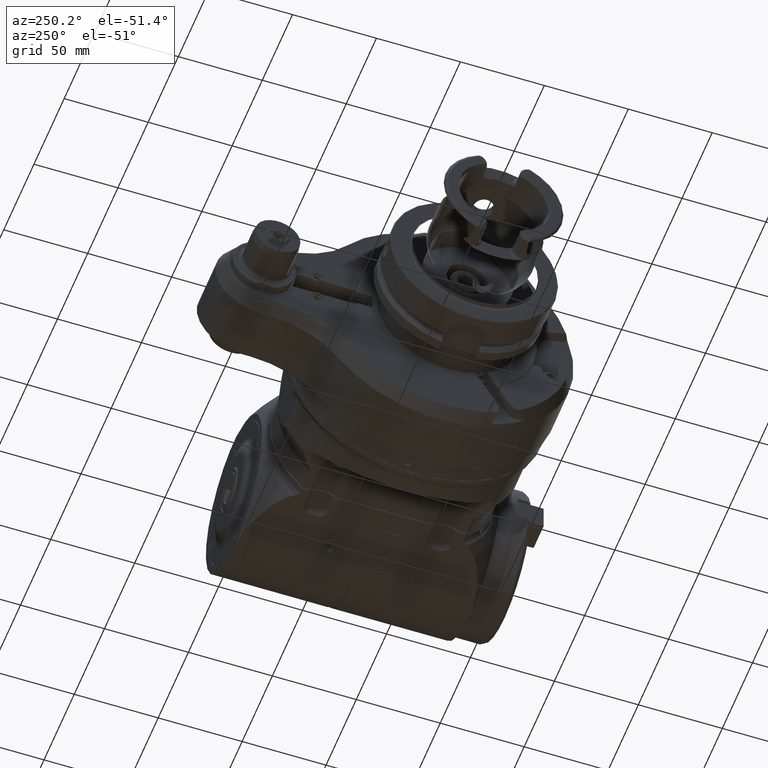
[diagram: clean part render]
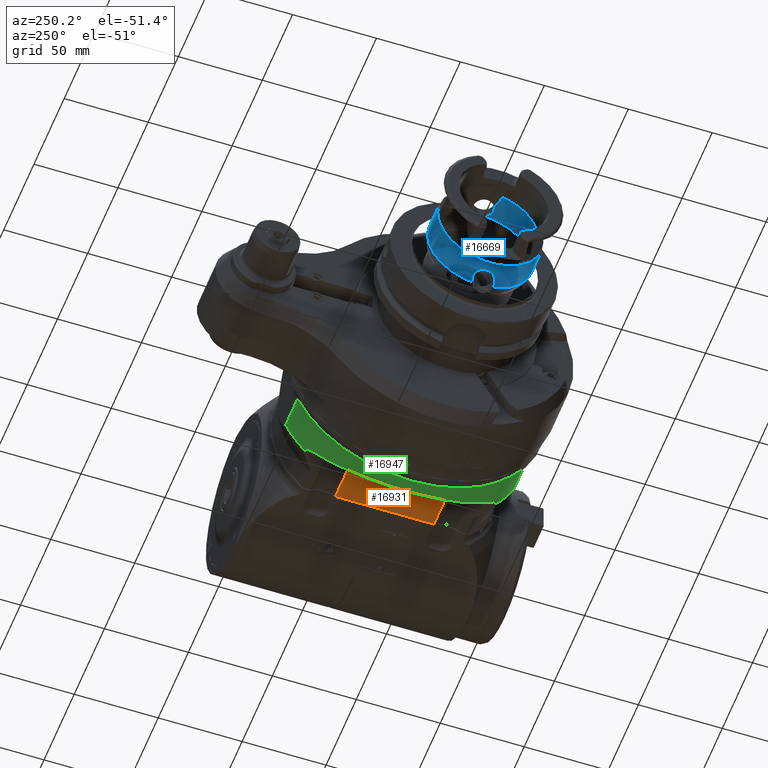
[diagram: same view with three faces highlighted in distinct colors, each labeled with its STEP entity id]
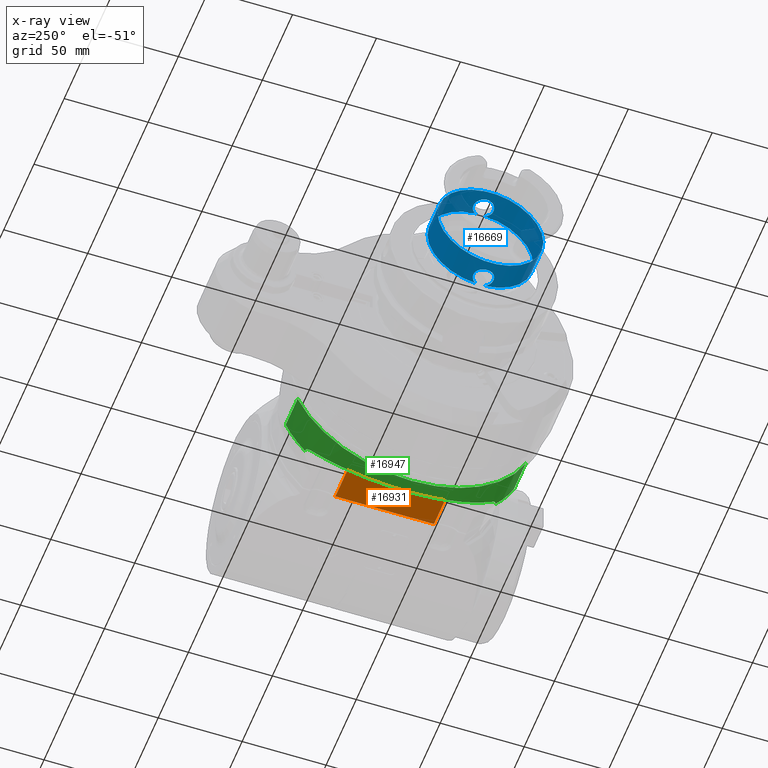
[diagram: x-ray of the same camera — body ghosted, the three highlighted faces saturated]
A machine part, auxiliary view with three faces highlighted in distinct colors.
The next image is the same camera in x-ray (body ghosted, the three faces saturated) — at least one of them is partly hidden behind the body in this view.
Their STEP definitions:

[orange] entity #16931 — the highlighted planar face has unit normal (0, -0, 1).
#1149=PLANE('',#18555);
#1912=FACE_OUTER_BOUND('',#2915,.T.);
#2915=EDGE_LOOP('',(#14111,#14112,#14113,#14114,#14115,#14116));
#4039=LINE('',#41698,#5346);
#4041=LINE('',#41705,#5348);
#4042=LINE('',#41709,#5349);
#4043=LINE('',#41710,#5350);
#5346=VECTOR('',#22198,22.5);
#5348=VECTOR('',#22204,59.46724184201);
#5349=VECTOR('',#22207,22.5);
#5350=VECTOR('',#22208,58.6939759534);
#6529=CIRCLE('',#18556,5.361902647382);
#6530=CIRCLE('',#18557,5.361902647382);
#7784=VERTEX_POINT('',#41691);
#7785=VERTEX_POINT('',#41697);
#7787=VERTEX_POINT('',#41703);
#7788=VERTEX_POINT('',#41704);
#7789=VERTEX_POINT('',#41706);
#7790=VERTEX_POINT('',#41708);
#10062=EDGE_CURVE('',#7785,#7784,#4039,.T.);
#10065=EDGE_CURVE('',#7787,#7788,#4041,.T.);
#10066=EDGE_CURVE('',#7789,#7787,#6529,.T.);
#10067=EDGE_CURVE('',#7790,#7789,#4042,.T.);
#10068=EDGE_CURVE('',#7790,#7784,#4043,.T.);
#10069=EDGE_CURVE('',#7785,#7788,#6530,.T.);
#14111=ORIENTED_EDGE('',*,*,#10065,.F.);
#14112=ORIENTED_EDGE('',*,*,#10066,.F.);
#14113=ORIENTED_EDGE('',*,*,#10067,.F.);
#14114=ORIENTED_EDGE('',*,*,#10068,.T.);
#14115=ORIENTED_EDGE('',*,*,#10062,.F.);
#14116=ORIENTED_EDGE('',*,*,#10069,.T.);
#16931=ADVANCED_FACE('',(#1912),#1149,.F.);
#18555=AXIS2_PLACEMENT_3D('',#41702,#22202,#22203);
#18556=AXIS2_PLACEMENT_3D('',#41707,#22205,#22206);
#18557=AXIS2_PLACEMENT_3D('',#41711,#22209,#22210);
#22198=DIRECTION('',(0.999999999999998,5.78819700712699E-8,-2.38164713235E-8));
#22202=DIRECTION('center_axis',(0.,0.,1.));
#22203=DIRECTION('ref_axis',(-1.,0.,0.));
#22204=DIRECTION('',(0.,-1.,0.));
#22205=DIRECTION('center_axis',(0.,0.,-1.));
#22206=DIRECTION('ref_axis',(0.,-1.,0.));
#22207=DIRECTION('',(-0.999999999999998,5.78843137570099E-8,2.381743513524E-8));
#22208=DIRECTION('',(0.,-1.,3.698348974468E-13));
#22209=DIRECTION('center_axis',(0.,0.,1.));
#22210=DIRECTION('ref_axis',(1.457685938624E-13,1.,0.));
#41691=CARTESIAN_POINT('',(40.4999999726847,-29.346988710895,-47.5000004198599));
#41697=CARTESIAN_POINT('',(18.,-29.34698927909,-47.5));
#41698=CARTESIAN_POINT('',(18.,-29.34698927909,-47.5));
#41702=CARTESIAN_POINT('Origin',(39.5,-92.4000024,-47.5));
#41703=CARTESIAN_POINT('',(16.00083056686,29.73362092099,-47.5));
#41704=CARTESIAN_POINT('',(16.00083056686,-29.73362092102,-47.5));
#41705=CARTESIAN_POINT('',(16.00083056686,29.73362092099,-47.5));
#41706=CARTESIAN_POINT('',(18.,29.34698927905,-47.5));
#41707=CARTESIAN_POINT('Origin',(18.,34.70889192643,-47.5));
#41708=CARTESIAN_POINT('',(40.4999999726819,29.3469887108875,-47.5000004198505));
#41709=CARTESIAN_POINT('',(40.5,29.34698797665,-47.50000053589));
#41710=CARTESIAN_POINT('',(40.5,29.34698797665,-47.50000053589));
#41711=CARTESIAN_POINT('Origin',(18.,-34.70889192647,-47.5));

[blue] entity #16669 — the highlighted cylindrical surface (bore or boss wall) has radius 31.5 mm, axis along (1, -0, -0).
#794=B_SPLINE_CURVE_WITH_KNOTS('',3,(#39626,#39627,#39628,#39629,#39630,
#39631,#39632,#39633,#39634,#39635,#39636,#39637,#39638,#39639,#39640,#39641,
#39642,#39643,#39644,#39645,#39646,#39647,#39648,#39649),.UNSPECIFIED.,
 .F.,.F.,(4,2,2,2,2,2,2,2,2,2,2,4),(1.1960723605861,1.35964031027847,1.58625396842777,
1.81286762657707,2.03948128472637,2.26609494287567,2.49269819137064,2.7193014398656,
2.94590468836057,3.17250793685554,3.39912159500484,3.62573525315414),
 .UNSPECIFIED.);
#795=B_SPLINE_CURVE_WITH_KNOTS('',3,(#39651,#39652,#39653,#39654,#39655,
#39656,#39657,#39658),.UNSPECIFIED.,.F.,.F.,(4,2,2,4),(3.62573525315414,
3.85234891130344,4.07896256945274,4.24253051914432),.UNSPECIFIED.);
#796=B_SPLINE_CURVE_WITH_KNOTS('',3,(#39664,#39665,#39666,#39667,#39668,
#39669,#39670,#39671),.UNSPECIFIED.,.F.,.F.,(4,2,2,4),(3.00893998716406,
3.17250793685554,3.39912159500484,3.62573525315414),.UNSPECIFIED.);
#797=B_SPLINE_CURVE_WITH_KNOTS('',3,(#39673,#39674,#39675,#39676,#39677,
#39678,#39679,#39680,#39681,#39682,#39683,#39684,#39685,#39686,#39687,#39688,
#39689,#39690,#39691,#39692,#39693,#39694,#39695,#39696),.UNSPECIFIED.,
 .F.,.F.,(4,2,2,2,2,2,2,2,2,2,2,4),(3.62573525315414,3.85234891130344,4.07896256945274,
4.30556581794771,4.53216906644267,4.75877231493764,4.98537556343261,5.21198922158191,
5.43860287973121,5.66521653788051,5.89183019602981,6.05539814571795),
 .UNSPECIFIED.);
#1650=FACE_OUTER_BOUND('',#2626,.T.);
#2626=EDGE_LOOP('',(#12813,#12814,#12815,#12816,#12817,#12818,#12819,#12820,
#12821,#12822,#12823,#12824));
#3784=LINE('',#39622,#5091);
#5091=VECTOR('',#20963,31.5);
#6305=CIRCLE('',#18060,31.5);
#6306=CIRCLE('',#18061,31.5);
#6308=CIRCLE('',#18064,31.5);
#6309=CIRCLE('',#18065,31.5);
#6310=CIRCLE('',#18066,31.5);
#6311=CIRCLE('',#18067,31.5);
#7363=VERTEX_POINT('',#39615);
#7364=VERTEX_POINT('',#39616);
#7365=VERTEX_POINT('',#39621);
#7366=VERTEX_POINT('',#39623);
#7367=VERTEX_POINT('',#39625);
#7368=VERTEX_POINT('',#39650);
#7369=VERTEX_POINT('',#39659);
#7370=VERTEX_POINT('',#39661);
#7371=VERTEX_POINT('',#39663);
#7372=VERTEX_POINT('',#39672);
#9409=EDGE_CURVE('',#7363,#7364,#6305,.T.);
#9410=EDGE_CURVE('',#7364,#7363,#6306,.T.);
#9412=EDGE_CURVE('',#7364,#7365,#3784,.T.);
#9413=EDGE_CURVE('',#7366,#7365,#6308,.T.);
#9414=EDGE_CURVE('',#7367,#7366,#794,.F.);
#9415=EDGE_CURVE('',#7368,#7367,#795,.F.);
#9416=EDGE_CURVE('',#7369,#7368,#6309,.T.);
#9417=EDGE_CURVE('',#7370,#7369,#6310,.T.);
#9418=EDGE_CURVE('',#7371,#7370,#796,.F.);
#9419=EDGE_CURVE('',#7372,#7371,#797,.F.);
#9420=EDGE_CURVE('',#7365,#7372,#6311,.T.);
#12813=ORIENTED_EDGE('',*,*,#9409,.F.);
#12814=ORIENTED_EDGE('',*,*,#9410,.F.);
#12815=ORIENTED_EDGE('',*,*,#9412,.T.);
#12816=ORIENTED_EDGE('',*,*,#9413,.F.);
#12817=ORIENTED_EDGE('',*,*,#9414,.F.);
#12818=ORIENTED_EDGE('',*,*,#9415,.F.);
#12819=ORIENTED_EDGE('',*,*,#9416,.F.);
#12820=ORIENTED_EDGE('',*,*,#9417,.F.);
#12821=ORIENTED_EDGE('',*,*,#9418,.F.);
#12822=ORIENTED_EDGE('',*,*,#9419,.F.);
#12823=ORIENTED_EDGE('',*,*,#9420,.F.);
#12824=ORIENTED_EDGE('',*,*,#9412,.F.);
#16188=CYLINDRICAL_SURFACE('',#18063,31.5);
#16669=ADVANCED_FACE('',(#1650),#16188,.F.);
#18060=AXIS2_PLACEMENT_3D('',#39617,#20955,#20956);
#18061=AXIS2_PLACEMENT_3D('',#39618,#20957,#20958);
#18063=AXIS2_PLACEMENT_3D('',#39620,#20961,#20962);
#18064=AXIS2_PLACEMENT_3D('',#39624,#20964,#20965);
#18065=AXIS2_PLACEMENT_3D('',#39660,#20966,#20967);
#18066=AXIS2_PLACEMENT_3D('',#39662,#20968,#20969);
#18067=AXIS2_PLACEMENT_3D('',#39697,#20970,#20971);
#20955=DIRECTION('center_axis',(1.,-3.552713678797E-13,0.));
#20956=DIRECTION('ref_axis',(0.,0.,1.));
#20957=DIRECTION('center_axis',(1.,-3.552713678797E-13,0.));
#20958=DIRECTION('ref_axis',(0.,0.,1.));
#20961=DIRECTION('center_axis',(1.,-3.552713678797E-13,0.));
#20962=DIRECTION('ref_axis',(0.,0.,-1.));
#20963=DIRECTION('',(1.,-3.552713678797E-13,0.));
#20964=DIRECTION('center_axis',(-1.,3.552713678797E-13,0.));
#20965=DIRECTION('ref_axis',(-3.53763688911732E-13,-0.995756260976036,0.0920297165432133));
#20966=DIRECTION('center_axis',(-1.,3.552713678797E-13,0.));
#20967=DIRECTION('ref_axis',(3.53763688911752E-13,0.995756260976093,-0.0920297165425993));
#20968=DIRECTION('center_axis',(-1.,3.552713678797E-13,0.));
#20969=DIRECTION('ref_axis',(3.53763688911752E-13,0.995756260976093,-0.0920297165425993));
#20970=DIRECTION('center_axis',(-1.,3.552713678797E-13,0.));
#20971=DIRECTION('ref_axis',(-3.53763688911732E-13,-0.995756260976036,0.0920297165432133));
#39615=CARTESIAN_POINT('',(-37.53927405783,5.051935058243E-11,-31.5));
#39616=CARTESIAN_POINT('',(-37.53927405783,5.05154928176211E-11,31.5));
#39617=CARTESIAN_POINT('Origin',(-37.53927405783,5.051935045504E-11,0.));
#39618=CARTESIAN_POINT('Origin',(-37.53927405783,5.051935045504E-11,0.));
#39620=CARTESIAN_POINT('Origin',(-29.14303420132,4.753640683617E-11,0.));
#39621=CARTESIAN_POINT('',(-20.7467943447972,4.45496055798798E-11,31.5));
#39622=CARTESIAN_POINT('',(-29.14303420132,4.75325491987527E-11,31.5));
#39623=CARTESIAN_POINT('',(-20.7467943448,-31.3663222207,2.898936071072));
#39624=CARTESIAN_POINT('Origin',(-20.74679434481,4.455346321731E-11,0.));
#39625=CARTESIAN_POINT('',(-26.0000000000115,-30.923292192086,-6.));
#39626=CARTESIAN_POINT('Ctrl Pts',(-20.7467943448084,-31.3663222207046,
2.89893607106815));
#39627=CARTESIAN_POINT('Ctrl Pts',(-21.0245557801368,-31.3198029656705,
3.40227174563756));
#39628=CARTESIAN_POINT('Ctrl Pts',(-21.3735944691366,-31.2651415109957,
3.85887584336357));
#39629=CARTESIAN_POINT('Ctrl Pts',(-22.2890426608596,-31.1407087274129,
4.77432403508655));
#39630=CARTESIAN_POINT('Ctrl Pts',(-22.9624834305544,-31.0633803744313,
5.23577180141274));
#39631=CARTESIAN_POINT('Ctrl Pts',(-24.4401908644842,-30.9538382315849,
5.84865855662957));
#39632=CARTESIAN_POINT('Ctrl Pts',(-25.2446211395139,-30.9232921920863,
6.));
#39633=CARTESIAN_POINT('Ctrl Pts',(-26.7553788605092,-30.9232921920858,
6.));
#39634=CARTESIAN_POINT('Ctrl Pts',(-27.5598091355388,-30.9538382315838,
5.84865855662957));
#39635=CARTESIAN_POINT('Ctrl Pts',(-29.0375165694688,-31.0633803744291,
5.23577180141274));
#39636=CARTESIAN_POINT('Ctrl Pts',(-29.7109573391636,-31.1407087274102,
4.77432403508655));
#39637=CARTESIAN_POINT('Ctrl Pts',(-30.7742996118577,-31.2852440928064,
3.71098176239249));
#39638=CARTESIAN_POINT('Ctrl Pts',(-31.2357665182075,-31.3619556484263,
3.03753058698362));
#39639=CARTESIAN_POINT('Ctrl Pts',(-31.8486671603478,-31.4700797313194,
1.55978711209123));
#39640=CARTESIAN_POINT('Ctrl Pts',(-32.0000000000117,-31.4999999999515,
0.755344161649892));
#39641=CARTESIAN_POINT('Ctrl Pts',(-32.0000000000117,-31.4999999999515,
-0.755344161649894));
#39642=CARTESIAN_POINT('Ctrl Pts',(-31.8486671603478,-31.4700797313194,
-1.55978711209124));
#39643=CARTESIAN_POINT('Ctrl Pts',(-31.2357665182075,-31.3619556484263,
-3.03753058698362));
#39644=CARTESIAN_POINT('Ctrl Pts',(-30.7742996118577,-31.2852440928064,
-3.71098176239249));
#39645=CARTESIAN_POINT('Ctrl Pts',(-29.7109573391636,-31.1407087274102,
-4.77432403508655));
#39646=CARTESIAN_POINT('Ctrl Pts',(-29.0375165694688,-31.0633803744291,
-5.23577180141274));
#39647=CARTESIAN_POINT('Ctrl Pts',(-27.5598091355388,-30.9538382315838,
-5.84865855662957));
#39648=CARTESIAN_POINT('Ctrl Pts',(-26.7553788605092,-30.9232921920858,
-6.));
#39649=CARTESIAN_POINT('Ctrl Pts',(-26.0000000000115,-30.923292192086,-6.));
#39650=CARTESIAN_POINT('',(-20.74679434481,-31.3663222207,-2.898936071076));
#39651=CARTESIAN_POINT('Ctrl Pts',(-26.0000000000115,-30.923292192086,-6.));
#39652=CARTESIAN_POINT('Ctrl Pts',(-25.2446211395139,-30.9232921920863,
-6.));
#39653=CARTESIAN_POINT('Ctrl Pts',(-24.4401908644842,-30.9538382315849,
-5.84865855662957));
#39654=CARTESIAN_POINT('Ctrl Pts',(-22.9624834305544,-31.0633803744313,
-5.23577180141273));
#39655=CARTESIAN_POINT('Ctrl Pts',(-22.2890426608596,-31.1407087274129,
-4.77432403508655));
#39656=CARTESIAN_POINT('Ctrl Pts',(-21.3735944691385,-31.2651415109955,
-3.85887584336541));
#39657=CARTESIAN_POINT('Ctrl Pts',(-21.0245557801401,-31.31980296567,-3.40227174564196));
#39658=CARTESIAN_POINT('Ctrl Pts',(-20.7467943448124,-31.3663222207039,
-2.89893607107542));
#39659=CARTESIAN_POINT('',(-20.74679434481,4.45496055798927E-11,-31.5));
#39660=CARTESIAN_POINT('Origin',(-20.74679434481,4.455346321731E-11,0.));
#39661=CARTESIAN_POINT('',(-20.74679434479,31.36632222079,-2.898936071076));
#39662=CARTESIAN_POINT('Origin',(-20.74679434481,4.455346321731E-11,0.));
#39663=CARTESIAN_POINT('',(-25.9999999999895,30.9232921921789,-6.));
#39664=CARTESIAN_POINT('Ctrl Pts',(-20.7467943447906,31.3663222207929,-2.89893607107631));
#39665=CARTESIAN_POINT('Ctrl Pts',(-21.0245557801183,31.3198029657592,-3.4022717456425));
#39666=CARTESIAN_POINT('Ctrl Pts',(-21.3735944691165,31.265141511085,-3.85887584336564));
#39667=CARTESIAN_POINT('Ctrl Pts',(-22.2890426608374,31.1407087275031,-4.77432403508655));
#39668=CARTESIAN_POINT('Ctrl Pts',(-22.9624834305323,31.063380374522,-5.23577180141274));
#39669=CARTESIAN_POINT('Ctrl Pts',(-24.4401908644622,30.9538382316767,-5.84865855662957));
#39670=CARTESIAN_POINT('Ctrl Pts',(-25.2446211394919,30.9232921921786,-6.));
#39671=CARTESIAN_POINT('Ctrl Pts',(-25.9999999999895,30.9232921921789,-6.));
#39672=CARTESIAN_POINT('',(-20.7467943448,31.36632222079,2.898936071111));
#39673=CARTESIAN_POINT('Ctrl Pts',(-25.9999999999895,30.9232921921789,-6.));
#39674=CARTESIAN_POINT('Ctrl Pts',(-26.7553788604872,30.9232921921791,-6.));
#39675=CARTESIAN_POINT('Ctrl Pts',(-27.5598091355169,30.9538382316778,-5.84865855662957));
#39676=CARTESIAN_POINT('Ctrl Pts',(-29.0375165694467,31.0633803745241,-5.23577180141274));
#39677=CARTESIAN_POINT('Ctrl Pts',(-29.7109573391415,31.1407087275057,-4.77432403508655));
#39678=CARTESIAN_POINT('Ctrl Pts',(-30.7742996118355,31.2852440929026,-3.71098176239249));
#39679=CARTESIAN_POINT('Ctrl Pts',(-31.2357665181852,31.3619556485229,-3.03753058698362));
#39680=CARTESIAN_POINT('Ctrl Pts',(-31.8486671603255,31.4700797314164,-1.55978711209124));
#39681=CARTESIAN_POINT('Ctrl Pts',(-31.9999999999893,31.5000000000486,-0.755344161649895));
#39682=CARTESIAN_POINT('Ctrl Pts',(-31.9999999999893,31.5000000000486,0.755344161649892));
#39683=CARTESIAN_POINT('Ctrl Pts',(-31.8486671603255,31.4700797314164,1.55978711209124));
#39684=CARTESIAN_POINT('Ctrl Pts',(-31.2357665181852,31.3619556485229,3.03753058698362));
#39685=CARTESIAN_POINT('Ctrl Pts',(-30.7742996118355,31.2852440929026,3.71098176239249));
#39686=CARTESIAN_POINT('Ctrl Pts',(-29.7109573391415,31.1407087275057,4.77432403508655));
#39687=CARTESIAN_POINT('Ctrl Pts',(-29.0375165694467,31.0633803745241,5.23577180141274));
#39688=CARTESIAN_POINT('Ctrl Pts',(-27.5598091355169,30.9538382316778,5.84865855662957));
#39689=CARTESIAN_POINT('Ctrl Pts',(-26.7553788604872,30.9232921921792,6.));
#39690=CARTESIAN_POINT('Ctrl Pts',(-25.2446211394919,30.9232921921786,6.));
#39691=CARTESIAN_POINT('Ctrl Pts',(-24.4401908644622,30.9538382316767,5.84865855662957));
#39692=CARTESIAN_POINT('Ctrl Pts',(-22.9624834305323,31.063380374522,5.23577180141274));
#39693=CARTESIAN_POINT('Ctrl Pts',(-22.2890426608374,31.1407087275031,4.77432403508655));
#39694=CARTESIAN_POINT('Ctrl Pts',(-21.3735944691243,31.2651415110839,3.85887584337348));
#39695=CARTESIAN_POINT('Ctrl Pts',(-21.0245557801325,31.319802965757,3.40227174566122));
#39696=CARTESIAN_POINT('Ctrl Pts',(-20.7467943448076,31.3663222207901,2.89893607110716));
#39697=CARTESIAN_POINT('Origin',(-20.74679434481,4.455346321731E-11,0.));

[green] entity #16947 — the highlighted cylindrical surface (partial cylindrical patch) has radius 74 mm, axis along (1, -0, -0).
#39=ELLIPSE('',#18562,78.7491551632184,74.);
#844=B_SPLINE_CURVE_WITH_KNOTS('',3,(#41517,#41518,#41519,#41520,#41521,
#41522,#41523,#41524),.UNSPECIFIED.,.F.,.F.,(4,2,2,4),(-8.97473766116249,
-8.92847385363976,-8.88221004611703,-8.8541838956784),.UNSPECIFIED.);
#866=B_SPLINE_CURVE_WITH_KNOTS('',3,(#41889,#41890,#41891,#41892,#41893,
#41894,#41895,#41896,#41897,#41898),.UNSPECIFIED.,.F.,.F.,(4,2,2,2,4),(-1.3951785206262,
-1.30734777719661,-1.15922986829573,-0.950940355376749,-0.92440659430022),
 .UNSPECIFIED.);
#867=B_SPLINE_CURVE_WITH_KNOTS('',3,(#41904,#41905,#41906,#41907,#41908,
#41909),.UNSPECIFIED.,.F.,.F.,(4,2,4),(5.82399857270311,5.88327052843539,
5.94927367881169),.UNSPECIFIED.);
#868=B_SPLINE_CURVE_WITH_KNOTS('',3,(#41913,#41914,#41915,#41916,#41917,
#41918,#41919,#41920,#41921,#41922),.UNSPECIFIED.,.F.,.F.,(4,2,2,2,4),(0.92440659430022,
0.950940355376749,1.15922986829573,1.30734777719661,1.39517852399918),
 .UNSPECIFIED.);
#1928=FACE_OUTER_BOUND('',#2933,.T.);
#2933=EDGE_LOOP('',(#14198,#14199,#14200,#14201,#14202,#14203,#14204,#14205,
#14206,#14207));
#4027=LINE('',#41514,#5334);
#4063=LINE('',#41902,#5370);
#5334=VECTOR('',#22132,18.59147469257);
#5370=VECTOR('',#22282,18.59147469257);
#6536=CIRCLE('',#18584,74.);
#6537=CIRCLE('',#18585,74.);
#6538=CIRCLE('',#18586,74.);
#7757=VERTEX_POINT('',#41452);
#7762=VERTEX_POINT('',#41503);
#7763=VERTEX_POINT('',#41516);
#7797=VERTEX_POINT('',#41751);
#7798=VERTEX_POINT('',#41753);
#7824=VERTEX_POINT('',#41882);
#7825=VERTEX_POINT('',#41900);
#7826=VERTEX_POINT('',#41901);
#7827=VERTEX_POINT('',#41903);
#7828=VERTEX_POINT('',#41911);
#10023=EDGE_CURVE('',#7757,#7762,#4027,.T.);
#10024=EDGE_CURVE('',#7757,#7763,#844,.T.);
#10078=EDGE_CURVE('',#7797,#7798,#39,.T.);
#10116=EDGE_CURVE('',#7824,#7797,#866,.T.);
#10117=EDGE_CURVE('',#7825,#7826,#4063,.T.);
#10118=EDGE_CURVE('',#7827,#7826,#867,.T.);
#10119=EDGE_CURVE('',#7763,#7827,#6536,.T.);
#10120=EDGE_CURVE('',#7828,#7762,#6537,.T.);
#10121=EDGE_CURVE('',#7798,#7828,#868,.T.);
#10122=EDGE_CURVE('',#7825,#7824,#6538,.T.);
#14198=ORIENTED_EDGE('',*,*,#10117,.T.);
#14199=ORIENTED_EDGE('',*,*,#10118,.F.);
#14200=ORIENTED_EDGE('',*,*,#10119,.F.);
#14201=ORIENTED_EDGE('',*,*,#10024,.F.);
#14202=ORIENTED_EDGE('',*,*,#10023,.T.);
#14203=ORIENTED_EDGE('',*,*,#10120,.F.);
#14204=ORIENTED_EDGE('',*,*,#10121,.F.);
#14205=ORIENTED_EDGE('',*,*,#10078,.F.);
#14206=ORIENTED_EDGE('',*,*,#10116,.F.);
#14207=ORIENTED_EDGE('',*,*,#10122,.F.);
#16259=CYLINDRICAL_SURFACE('',#18583,74.);
#16947=ADVANCED_FACE('',(#1928),#16259,.T.);
#18562=AXIS2_PLACEMENT_3D('',#41754,#22221,#22222);
#18583=AXIS2_PLACEMENT_3D('',#41899,#22280,#22281);
#18584=AXIS2_PLACEMENT_3D('',#41910,#22283,#22284);
#18585=AXIS2_PLACEMENT_3D('',#41912,#22285,#22286);
#18586=AXIS2_PLACEMENT_3D('',#41923,#22287,#22288);
#22132=DIRECTION('',(1.,0.,0.));
#22221=DIRECTION('center_axis',(0.939692620785897,0.,-0.342020143325699));
#22222=DIRECTION('ref_axis',(0.342020143325699,-1.12785771207228E-16,0.939692620785897));
#22280=DIRECTION('center_axis',(1.,0.,0.));
#22281=DIRECTION('ref_axis',(0.,0.,-1.));
#22282=DIRECTION('',(-1.,0.,0.));
#22283=DIRECTION('center_axis',(-1.,0.,0.));
#22284=DIRECTION('ref_axis',(0.,0.528115842389186,-0.849172336465078));
#22285=DIRECTION('center_axis',(1.,0.,0.));
#22286=DIRECTION('ref_axis',(0.,0.766268020526802,-0.642521066361202));
#22287=DIRECTION('center_axis',(1.,0.,0.));
#22288=DIRECTION('ref_axis',(0.,-0.918918918918919,-0.394446473495308));
#41452=CARTESIAN_POINT('',(-3.199169847156,68.,-29.18903903865));
#41503=CARTESIAN_POINT('',(15.39230484541,68.,-29.18903903865));
#41514=CARTESIAN_POINT('',(-3.199169847156,68.,-29.18903903865));
#41516=CARTESIAN_POINT('',(-4.343145750507,68.16707433772,-28.79670078734));
#41517=CARTESIAN_POINT('Ctrl Pts',(-3.199169847161,68.0000000000003,-29.1890390386521));
#41518=CARTESIAN_POINT('Ctrl Pts',(-3.35338253890279,68.0000000000001,-29.1890390386526));
#41519=CARTESIAN_POINT('Ctrl Pts',(-3.50873002634391,68.0090859585314,-29.1678970355995));
#41520=CARTESIAN_POINT('Ctrl Pts',(-3.81147760353553,68.0442065780357,-29.0858718549993));
#41521=CARTESIAN_POINT('Ctrl Pts',(-3.9589027533416,68.0702020466671,-29.0250644150093));
#41522=CARTESIAN_POINT('Ctrl Pts',(-4.18296004485383,68.1218971883241,-28.903453239249));
#41523=CARTESIAN_POINT('Ctrl Pts',(-4.26472449291117,68.1436687105561,-28.852106201268));
#41524=CARTESIAN_POINT('Ctrl Pts',(-4.34314575050775,68.1670743377207,-28.7967007873413));
#41751=CARTESIAN_POINT('',(12.24206008372,-54.43152261875,-50.1319194267));
#41753=CARTESIAN_POINT('',(12.24206008372,54.43152261875,-50.1319194267));
#41754=CARTESIAN_POINT('Origin',(30.4885865416663,0.,0.));
#41882=CARTESIAN_POINT('',(15.3923048125211,-56.7038335107798,-47.5465589205125));
#41889=CARTESIAN_POINT('Ctrl Pts',(15.3923048113315,-56.7038335145847,-47.5465589159748));
#41890=CARTESIAN_POINT('Ctrl Pts',(15.0966365176392,-56.6656729212564,-47.5920690849595));
#41891=CARTESIAN_POINT('Ctrl Pts',(14.8046128873128,-56.5988263780084,-47.6717203786077));
#41892=CARTESIAN_POINT('Ctrl Pts',(14.0691232505964,-56.3530836493524,-47.962350324512));
#41893=CARTESIAN_POINT('Ctrl Pts',(13.6597016419349,-56.1261262009457,-48.2286199313907));
#41894=CARTESIAN_POINT('Ctrl Pts',(12.891424908051,-55.5320548889032,-48.9128954006325));
#41895=CARTESIAN_POINT('Ctrl Pts',(12.5439192001421,-55.0930592941075,-49.4090621932634));
#41896=CARTESIAN_POINT('Ctrl Pts',(12.2929239357564,-54.5548337505144,-49.9977823349801));
#41897=CARTESIAN_POINT('Ctrl Pts',(12.2665186874685,-54.4934139241589,-50.064719965177));
#41898=CARTESIAN_POINT('Ctrl Pts',(12.2420600837167,-54.4315226187475,-50.1319194266965));
#41899=CARTESIAN_POINT('Origin',(41.,0.,0.));
#41900=CARTESIAN_POINT('',(15.39230484541,-68.,-29.18903903865));
#41901=CARTESIAN_POINT('',(-3.199169847162,-68.,-29.18903903865));
#41902=CARTESIAN_POINT('',(15.39230484541,-68.,-29.18903903865));
#41903=CARTESIAN_POINT('',(-4.343145750508,-68.16707433772,-28.79670078734));
#41904=CARTESIAN_POINT('Ctrl Pts',(-4.3431457505092,-68.1670743377204,-28.7967007873419));
#41905=CARTESIAN_POINT('Ctrl Pts',(-4.1830012486624,-68.1192775716706,-28.9098445022585));
#41906=CARTESIAN_POINT('Ctrl Pts',(-4.01188734524031,-68.0791803320279,
-29.0039747753425));
#41907=CARTESIAN_POINT('Ctrl Pts',(-3.63105121116806,-68.018200178978,-29.146718243036));
#41908=CARTESIAN_POINT('Ctrl Pts',(-3.41918034841552,-67.9999999999997,
-29.1890390386537));
#41909=CARTESIAN_POINT('Ctrl Pts',(-3.199169847161,-67.9999999999997,-29.1890390386537));
#41910=CARTESIAN_POINT('Origin',(-4.343145750508,0.,0.));
#41911=CARTESIAN_POINT('',(15.39230484541,56.70383351898,-47.54655891073));
#41912=CARTESIAN_POINT('Origin',(15.39230484541,0.,0.));
#41913=CARTESIAN_POINT('Ctrl Pts',(12.2420600837167,54.4315226187475,-50.1319194266965));
#41914=CARTESIAN_POINT('Ctrl Pts',(12.2665186874685,54.4934139241589,-50.064719965177));
#41915=CARTESIAN_POINT('Ctrl Pts',(12.2929239357564,54.5548337505144,-49.9977823349801));
#41916=CARTESIAN_POINT('Ctrl Pts',(12.5439192001421,55.0930592941075,-49.4090621932634));
#41917=CARTESIAN_POINT('Ctrl Pts',(12.891424908051,55.5320548889032,-48.9128954006325));
#41918=CARTESIAN_POINT('Ctrl Pts',(13.6597016419349,56.1261262009457,-48.2286199313907));
#41919=CARTESIAN_POINT('Ctrl Pts',(14.0691232505964,56.3530836493524,-47.962350324512));
#41920=CARTESIAN_POINT('Ctrl Pts',(14.8046128978269,56.5988263815214,-47.6717203744531));
#41921=CARTESIAN_POINT('Ctrl Pts',(15.0966365401009,56.6656729263503,-47.5920690788931));
#41922=CARTESIAN_POINT('Ctrl Pts',(15.3923048454095,56.703833518983,-47.5465589107294));
#41923=CARTESIAN_POINT('Origin',(15.39230484541,0.,0.));